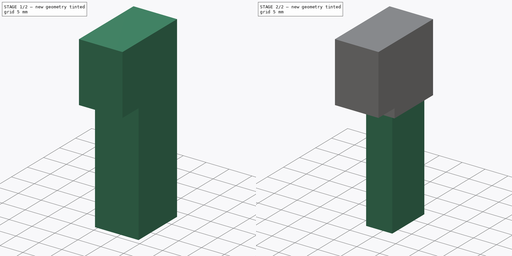
[diagram: build sequence overview — one tinted view per stage of 2, left to right]
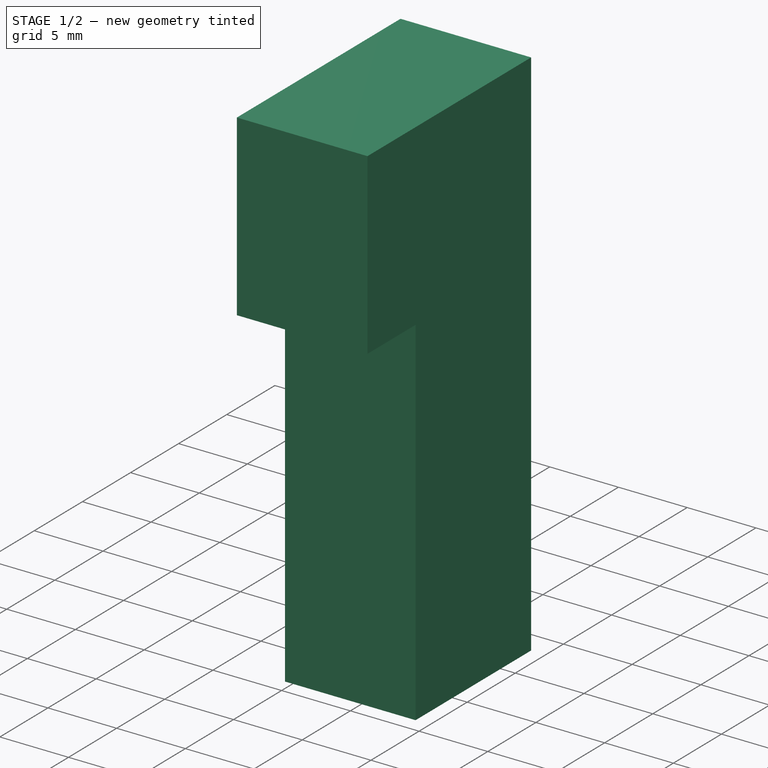
[diagram: stage 1 of 2 — iso view after this stage's code; geometry added in this stage tinted green]
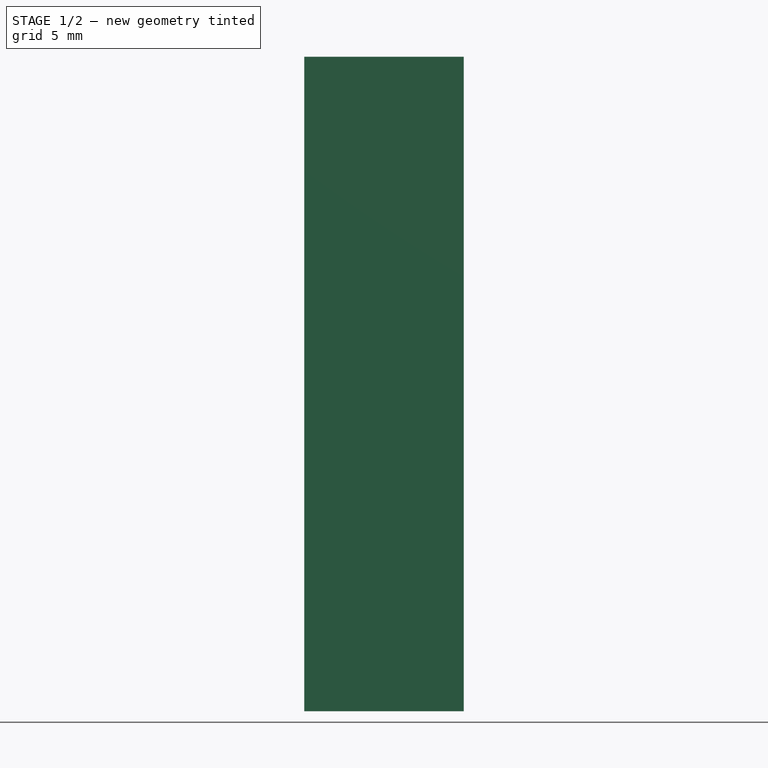
[diagram: stage 1 of 2 — front view after this stage's code; geometry added in this stage tinted green]
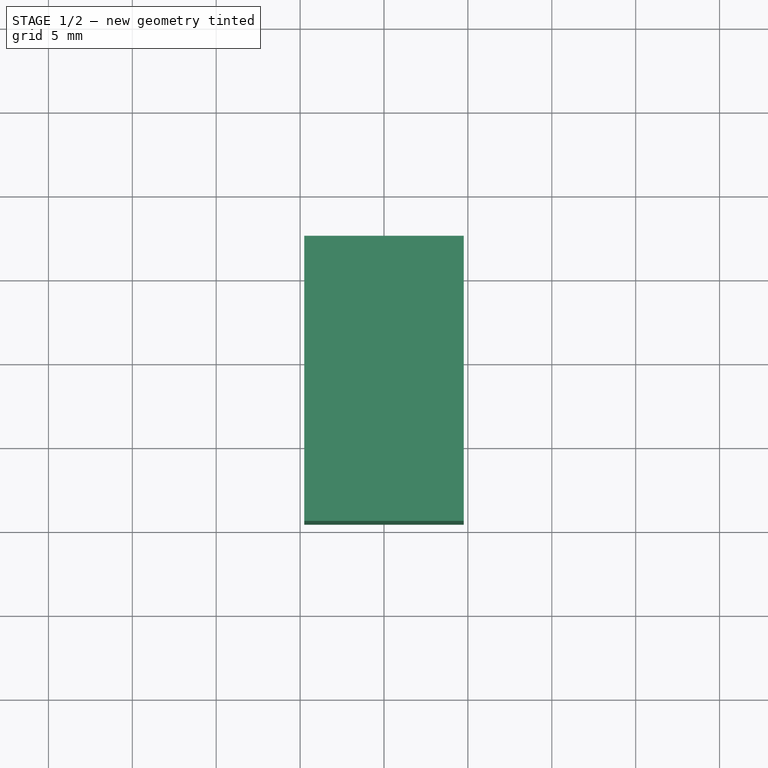
[diagram: stage 1 of 2 — top view after this stage's code; geometry added in this stage tinted green]
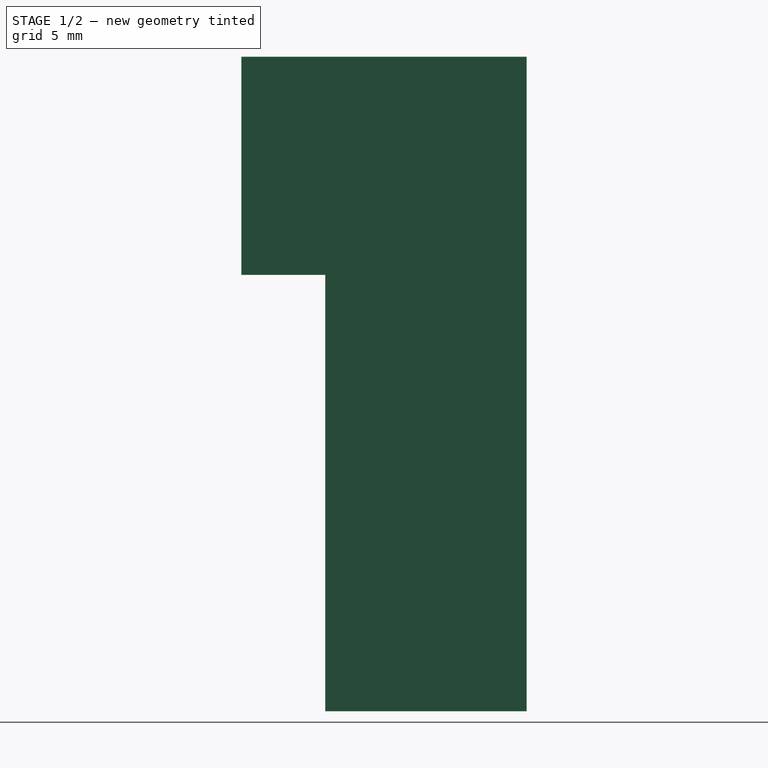
[diagram: stage 1 of 2 — right view after this stage's code; geometry added in this stage tinted green]
FCSTD DOCUMENT  (FreeCAD 0.18R)
Label: fronthook
License: All rights reserved
LicenseURL: http://en.wikipedia.org/wiki/All_rights_reserved
objects: Sketcher::SketchObject×5, PartDesign::Pocket×3, PartDesign::Pad×1, PartDesign::Body×1, App::MeasureDistance×1
note: 14 computed .brp shape members not serialized (recipe doc carries the construction recipe); baked Part::Feature solids carry a one-line shape summary decoded from their .brp

FEATURE [Sketcher::SketchObject] Sketch  label="TopSketch"
  sketch-geometry (4):
    g0: LineSegment StartX=-4.75 StartY=17 StartZ=0 EndX=4.75 EndY=17 EndZ=0
    g1: LineSegment StartX=4.75 StartY=17 StartZ=0 EndX=4.75 EndY=0 EndZ=0
    g2: LineSegment StartX=4.75 StartY=0 StartZ=0 EndX=-4.75 EndY=0 EndZ=0
    g3: LineSegment StartX=-4.75 StartY=0 StartZ=0 EndX=-4.75 EndY=17 EndZ=0
  constraints (11):
    c: Coincident(g0,g1)
    c: Coincident(g1,g2)
    c: Coincident(g2,g3)
    c: Coincident(g3,g0)
    c: Horizontal(g0)
    c: Horizontal(g2)
    c: Vertical(g1)
    c: Vertical(g3)
    c: Symmetric(g2,g2,g-1)
    c: DistanceY(g1,g1) = 17  'HookFrontDepth'
    c: DistanceX(g2,g2) = 9.5  'HookMaxWidth'
FEATURE [PartDesign::Pad] Pad  label="TopExtrude"
  Length = 39
  Length2 = 100
  Profile = -> Sketch
  Type = 0
FEATURE [Sketcher::SketchObject] Sketch001
  MapMode = 5
  Placement = pos=(0,0,0) rot=(1,0,0;1.5708rad)
  Support = -> [Pad]
  expr: Constraints[10] = TopExtrude.Length - 13mm
  expr: Constraints[9] = TopSketch.Constraints.HookMaxWidth
  sketch-geometry (4):
    g0: LineSegment StartX=-4.75 StartY=26 StartZ=0 EndX=4.75 EndY=26 EndZ=0
    g1: LineSegment StartX=4.75 StartY=26 StartZ=0 EndX=4.75 EndY=0 EndZ=0
    g2: LineSegment StartX=4.75 StartY=0 StartZ=0 EndX=-4.75 EndY=0 EndZ=0
    g3: LineSegment StartX=-4.75 StartY=0 StartZ=0 EndX=-4.75 EndY=26 EndZ=0
  constraints (11):
    c: Coincident(g0,g1)
    c: Coincident(g1,g2)
    c: Coincident(g2,g3)
    c: Coincident(g3,g0)
    c: Horizontal(g0)
    c: Horizontal(g2)
    c: Vertical(g1)
    c: Vertical(g3)
    c: Symmetric(g2,g2,g-1)
    c: DistanceX(g2,g2) = 9.5
    c: DistanceY(g3,g3) = 26
FEATURE [PartDesign::Pocket] Pocket
  BaseFeature = -> Pad
  Length = 5
  Length2 = 100
  Profile = -> Sketch001
  Type = 0
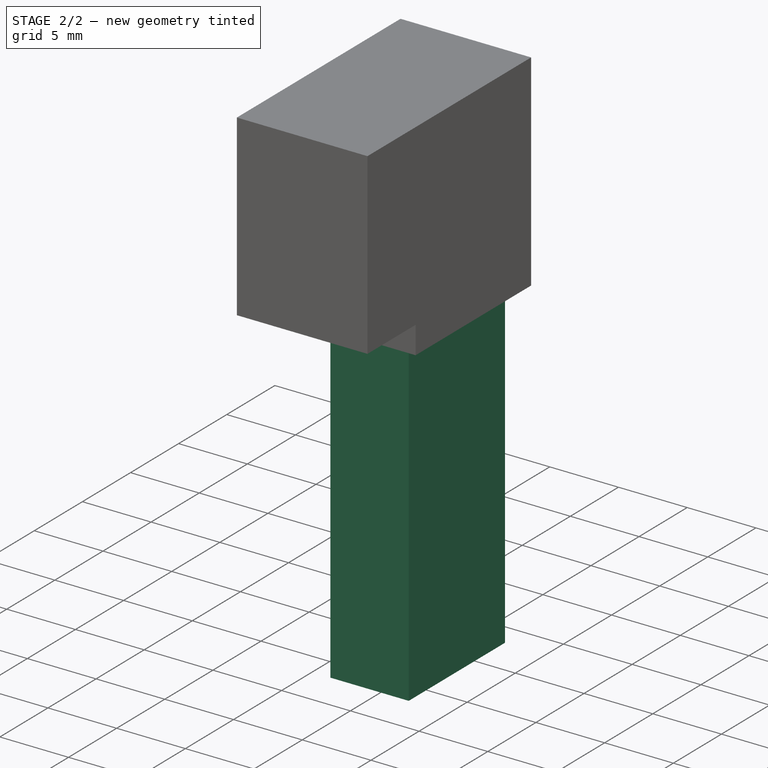
[diagram: stage 2 of 2 — iso view after this stage's code; geometry added in this stage tinted green]
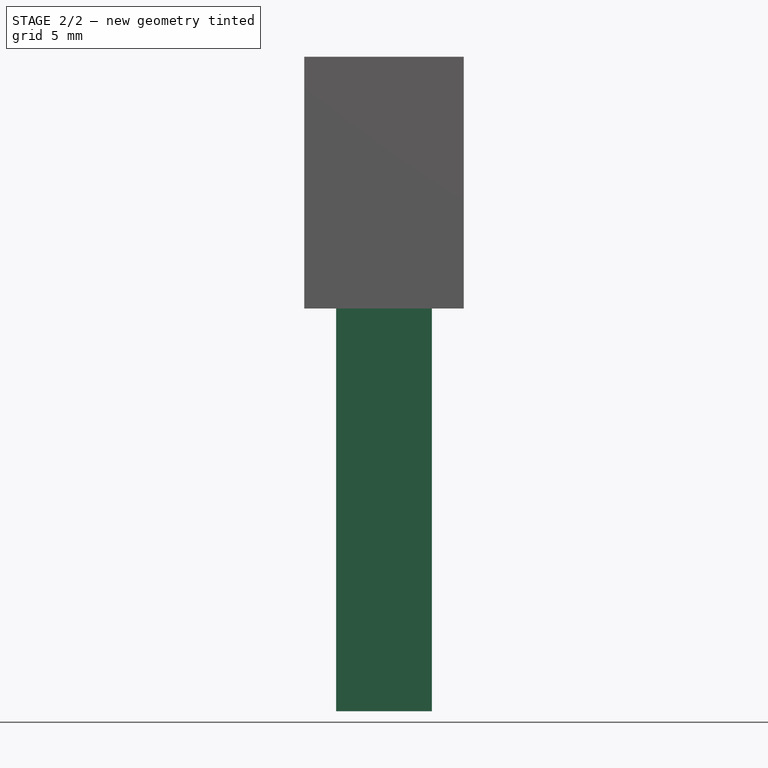
[diagram: stage 2 of 2 — front view after this stage's code; geometry added in this stage tinted green]
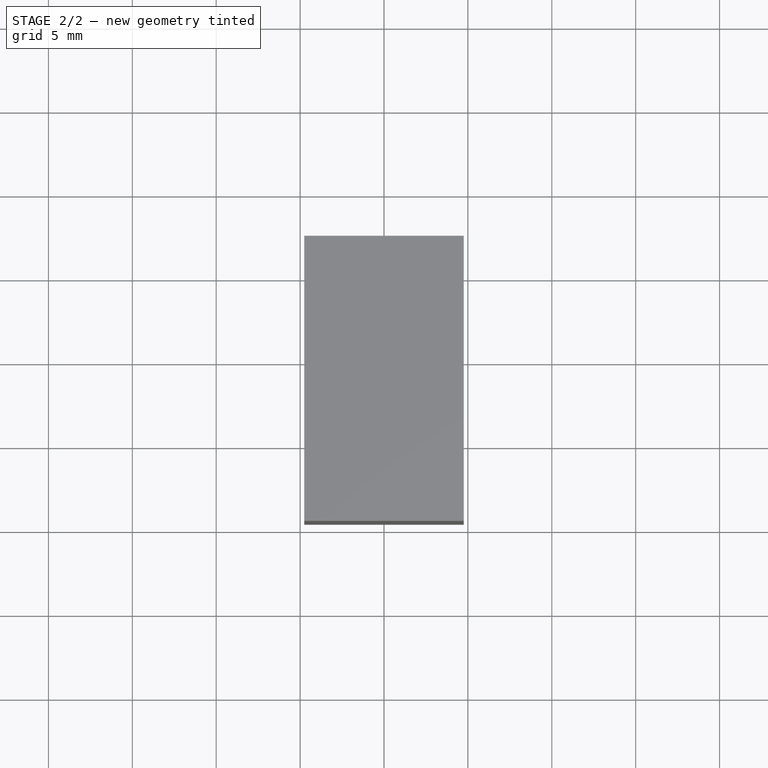
[diagram: stage 2 of 2 — top view after this stage's code; geometry added in this stage tinted green]
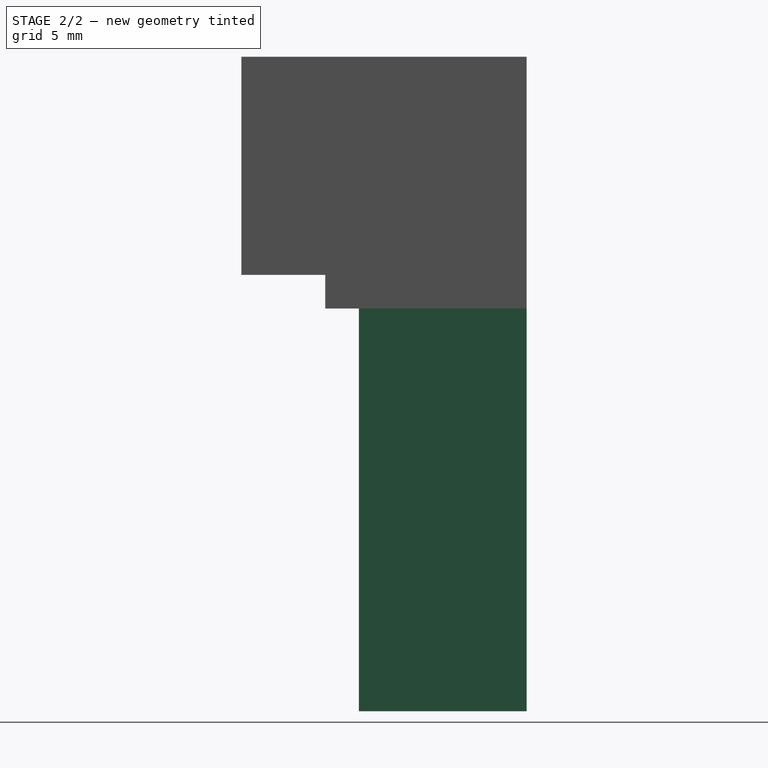
[diagram: stage 2 of 2 — right view after this stage's code; geometry added in this stage tinted green]
FEATURE [Sketcher::SketchObject] Sketch002
  MapMode = 5
  Placement = pos=(0,17,0) rot=(0,0.707107,0.707107;3.14159rad)
  Support = -> [Pocket]
  expr: Constraints[23] = Constraints.OuterDistance
  expr: Constraints[11] = TopExtrude.Length - 15mm
  expr: Constraints.OuterDistance = TopSketch.Constraints.HookMaxWidth / 2
  sketch-geometry (8):
    g0: LineSegment StartX=-4.75 StartY=24 StartZ=0 EndX=-2.85 EndY=24 EndZ=0
    g1: LineSegment StartX=-2.85 StartY=24 StartZ=0 EndX=-2.85 EndY=0 EndZ=0
    g2: LineSegment StartX=-2.85 StartY=0 StartZ=0 EndX=-4.75 EndY=0 EndZ=0
    g3: LineSegment StartX=-4.75 StartY=0 StartZ=0 EndX=-4.75 EndY=24 EndZ=0
    g4: LineSegment StartX=2.85 StartY=24 StartZ=0 EndX=4.75 EndY=24 EndZ=0
    g5: LineSegment StartX=4.75 StartY=24 StartZ=0 EndX=4.75 EndY=0 EndZ=0
    g6: LineSegment StartX=4.75 StartY=0 StartZ=0 EndX=2.85 EndY=0 EndZ=0
    g7: LineSegment StartX=2.85 StartY=0 StartZ=0 EndX=2.85 EndY=24 EndZ=0
  constraints (24):
    c: Coincident(g0,g1)
    c: Coincident(g1,g2)
    c: Coincident(g2,g3)
    c: Coincident(g3,g0)
    c: Horizontal(g0)
    c: Horizontal(g2)
    c: Vertical(g1)
    c: Vertical(g3)
    c: DistanceX(g2,g-1) = 4.75  'OuterDistance'
    c: PointOnObject(g1,g-1)
    c: DistanceX(g0,g0) = 1.9  'WallThinkness'
    c: DistanceY(g1,g1) = 24
    c: Coincident(g4,g5)
    c: Coincident(g5,g6)
    c: Coincident(g6,g7)
    c: Coincident(g7,g4)
    c: Horizontal(g4)
    c: Horizontal(g6)
    c: Vertical(g5)
    c: Vertical(g7)
    c: Equal(g6,g2)
    c: Equal(g7,g1)
    c: PointOnObject(g6,g-1)
    c: DistanceX(g-1,g5) = 4.75
FEATURE [PartDesign::Pocket] Pocket001
  BaseFeature = -> Pocket
  Length = 17
  Length2 = 100
  Profile = -> Sketch002
  Type = 0
  expr: Length = TopSketch.Constraints.HookFrontDepth
FEATURE [Sketcher::SketchObject] Sketch003
  MapMode = 5
  Placement = pos=(0,0,0) rot=(1,0,0;1.5708rad)
  Support = -> [Pad]
  expr: Constraints[10] = TopExtrude.Length - 13mm
  expr: Constraints[9] = TopSketch.Constraints.HookMaxWidth
  sketch-geometry (4):
    g0: LineSegment StartX=-4.75 StartY=26 StartZ=0 EndX=4.75 EndY=26 EndZ=0
    g1: LineSegment StartX=4.75 StartY=26 StartZ=0 EndX=4.75 EndY=0 EndZ=0
    g2: LineSegment StartX=4.75 StartY=0 StartZ=0 EndX=-4.75 EndY=0 EndZ=0
    g3: LineSegment StartX=-4.75 StartY=0 StartZ=0 EndX=-4.75 EndY=26 EndZ=0
  constraints (11):
    c: Coincident(g0,g1)
    c: Coincident(g1,g2)
    c: Coincident(g2,g3)
    c: Coincident(g3,g0)
    c: Horizontal(g0)
    c: Horizontal(g2)
    c: Vertical(g1)
    c: Vertical(g3)
    c: Symmetric(g2,g2,g-1)
    c: DistanceX(g2,g2) = 9.5
    c: DistanceY(g3,g3) = 26
FEATURE [Sketcher::SketchObject] CopySketch003
  Placement = pos=(0,0,0) rot=(1,0,0;1.5708rad)
  expr: Constraints[9] = TopSketch.Constraints.HookMaxWidth
  expr: Constraints[10] = TopExtrude.Length - 15mm
  sketch-geometry (4):
    g0: LineSegment StartX=-4.75 StartY=24 StartZ=0 EndX=4.75 EndY=24 EndZ=0
    g1: LineSegment StartX=4.75 StartY=24 StartZ=0 EndX=4.75 EndY=0 EndZ=0
    g2: LineSegment StartX=4.75 StartY=0 StartZ=0 EndX=-4.75 EndY=0 EndZ=0
    g3: LineSegment StartX=-4.75 StartY=0 StartZ=0 EndX=-4.75 EndY=24 EndZ=0
  constraints (11):
    c: Coincident(g0,g1)
    c: Coincident(g1,g2)
    c: Coincident(g2,g3)
    c: Coincident(g3,g0)
    c: Horizontal(g0)
    c: Horizontal(g2)
    c: Vertical(g1)
    c: Vertical(g3)
    c: Symmetric(g2,g2,g-1)
    c: DistanceX(g2,g2) = 9.5
    c: DistanceY(g3,g3) = 24
FEATURE [PartDesign::Pocket] Pocket002
  BaseFeature = -> Pocket001
  Length = 7
  Length2 = 100
  Profile = -> CopySketch003
  Type = 0
FEATURE [PartDesign::Body] Body
  Group = -> [Sketch,Pad,Sketch001,Pocket,Sketch002,Pocket001,Pocket002]
  Origin = -> Origin
  Tip = -> Pocket002
FEATURE [App::MeasureDistance] Distance  label="Distance: 5.96 mm"
  Distance = 5.96099
  P1 = (-3.01099,17,0)
  P2 = (2.95,17,0)
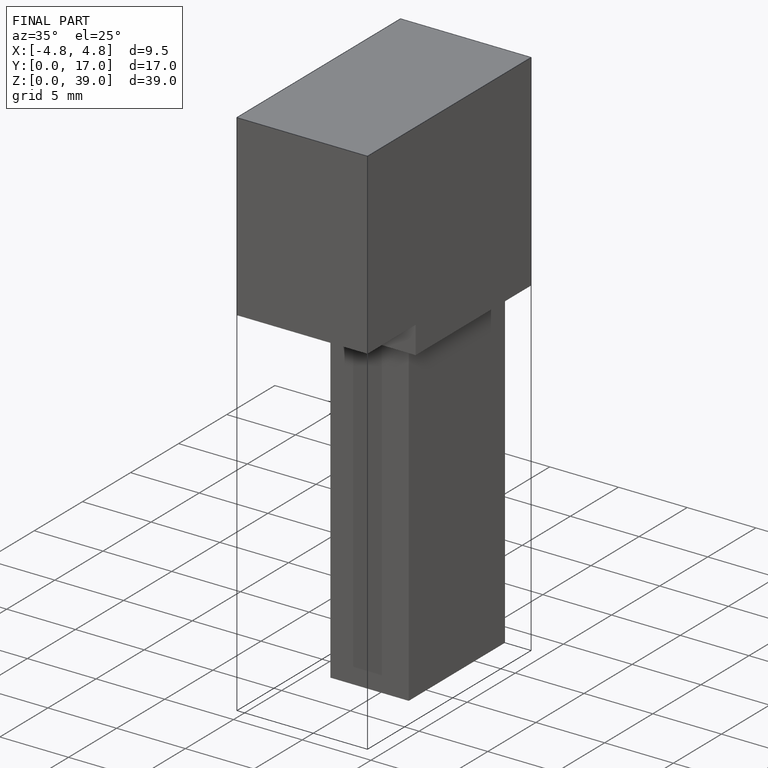
[diagram: finished part — iso view with bounding-box wireframe]
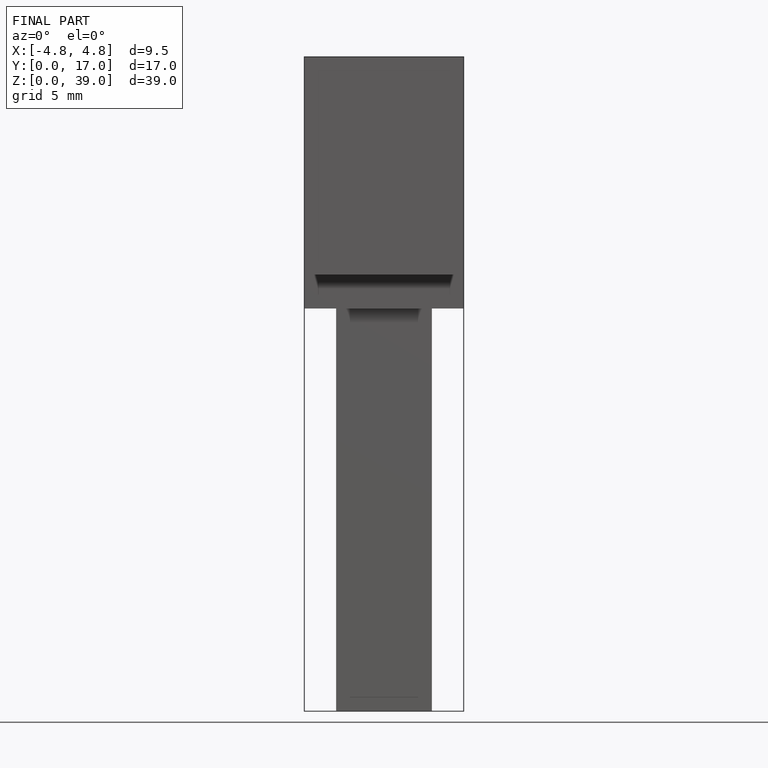
[diagram: finished part — front view with bounding-box wireframe]
